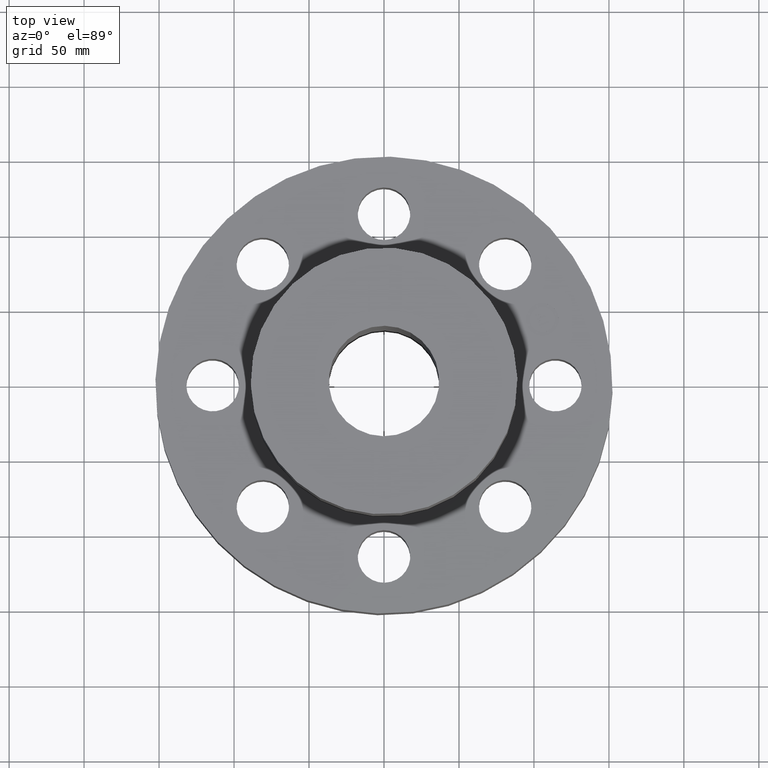
[diagram: clean part render]
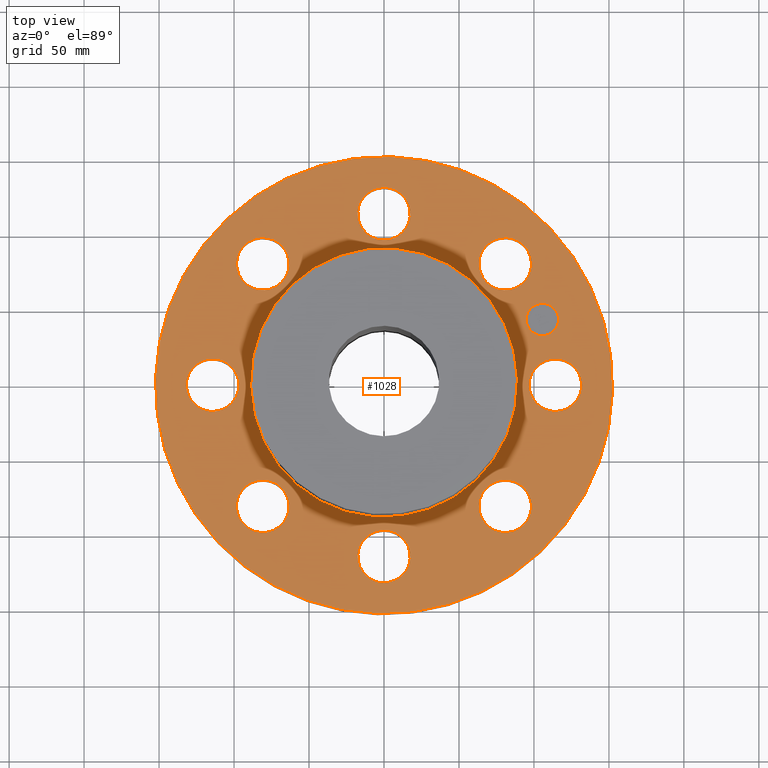
[diagram: same view with one face highlighted and labeled with its STEP entity id]
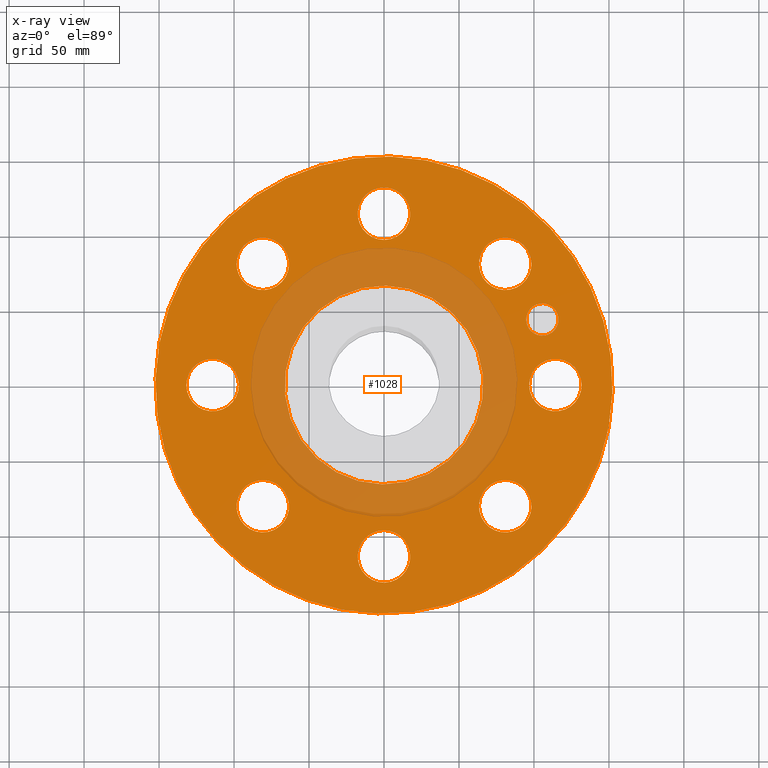
[diagram: x-ray of the same camera — body ghosted, the highlighted face saturated]
A machine part, top view. The second image highlights one B-rep face of the part: STEP entity #1028.
The next image is the same camera in x-ray: the body ghosted, the highlighted face saturated — about 22% of this face is hidden behind the body in this view.
In plain terms, the highlighted planar face has unit normal (0, 0, -1).
Its self-contained STEP definition (entity closure, byte-faithful):
#51=AXIS2_PLACEMENT_3D('Circle Axis2P3D',#49,#50,$) ;
#254=AXIS2_PLACEMENT_3D('Circle Axis2P3D',#252,#253,$) ;
#278=AXIS2_PLACEMENT_3D('Circle Axis2P3D',#276,#277,$) ;
#297=AXIS2_PLACEMENT_3D('Circle Axis2P3D',#295,#296,$) ;
#314=AXIS2_PLACEMENT_3D('Circle Axis2P3D',#312,#313,$) ;
#349=AXIS2_PLACEMENT_3D('Circle Axis2P3D',#347,#348,$) ;
#678=AXIS2_PLACEMENT_3D('Circle Axis2P3D',#676,#677,$) ;
#697=AXIS2_PLACEMENT_3D('Circle Axis2P3D',#695,#696,$) ;
#721=AXIS2_PLACEMENT_3D('Circle Axis2P3D',#719,#720,$) ;
#740=AXIS2_PLACEMENT_3D('Circle Axis2P3D',#738,#739,$) ;
#764=AXIS2_PLACEMENT_3D('Circle Axis2P3D',#762,#763,$) ;
#783=AXIS2_PLACEMENT_3D('Circle Axis2P3D',#781,#782,$) ;
#807=AXIS2_PLACEMENT_3D('Circle Axis2P3D',#805,#806,$) ;
#826=AXIS2_PLACEMENT_3D('Circle Axis2P3D',#824,#825,$) ;
#850=AXIS2_PLACEMENT_3D('Circle Axis2P3D',#848,#849,$) ;
#869=AXIS2_PLACEMENT_3D('Circle Axis2P3D',#867,#868,$) ;
#893=AXIS2_PLACEMENT_3D('Circle Axis2P3D',#891,#892,$) ;
#912=AXIS2_PLACEMENT_3D('Circle Axis2P3D',#910,#911,$) ;
#936=AXIS2_PLACEMENT_3D('Circle Axis2P3D',#934,#935,$) ;
#955=AXIS2_PLACEMENT_3D('Circle Axis2P3D',#953,#954,$) ;
#968=AXIS2_PLACEMENT_3D('Plane Axis2P3D',#965,#966,#967) ;
#1012=AXIS2_PLACEMENT_3D('Circle Axis2P3D',#1010,#1011,$) ;
#1021=AXIS2_PLACEMENT_3D('Circle Axis2P3D',#1019,#1020,$) ;
#44=CARTESIAN_POINT('Vertex',(3.89446803231,-0.330803621638,2.62000000001)) ;
#49=CARTESIAN_POINT('Axis2P3D Location',(4.50000000002,0.,2.62000000001)) ;
#53=CARTESIAN_POINT('Vertex',(5.10553196772,0.330803621638,2.62000000001)) ;
#252=CARTESIAN_POINT('Axis2P3D Location',(4.50000000002,0.,2.62000000001)) ;
#273=CARTESIAN_POINT('Vertex',(-2.87655323164,-5.26549537136,2.62000000001)) ;
#276=CARTESIAN_POINT('Axis2P3D Location',(0.,0.,2.62000000001)) ;
#280=CARTESIAN_POINT('Vertex',(2.87655323164,5.26549537136,2.62000000001)) ;
#295=CARTESIAN_POINT('Axis2P3D Location',(0.,0.,2.62000000001)) ;
#312=CARTESIAN_POINT('Axis2P3D Location',(0.,0.,2.62000000001)) ;
#316=CARTESIAN_POINT('Vertex',(1.25130065576,2.29049048654,2.62000000001)) ;
#318=CARTESIAN_POINT('Vertex',(-1.25130065576,-2.29049048654,2.62000000001)) ;
#347=CARTESIAN_POINT('Axis2P3D Location',(0.,0.,2.62000000001)) ;
#673=CARTESIAN_POINT('Vertex',(2.51989127066,-2.98771823886,2.62000000001)) ;
#676=CARTESIAN_POINT('Axis2P3D Location',(3.18198051535,-3.18198051535,2.62000000001)) ;
#680=CARTESIAN_POINT('Vertex',(3.84406976004,-3.37624279184,2.62000000001)) ;
#695=CARTESIAN_POINT('Axis2P3D Location',(3.18198051535,-3.18198051535,2.62000000001)) ;
#716=CARTESIAN_POINT('Vertex',(-0.330803621638,-3.89446803231,2.62000000001)) ;
#719=CARTESIAN_POINT('Axis2P3D Location',(2.75545529809E-016,-4.50000000002,2.62000000001)) ;
#723=CARTESIAN_POINT('Vertex',(0.330803621638,-5.10553196772,2.62000000001)) ;
#738=CARTESIAN_POINT('Axis2P3D Location',(2.75545529809E-016,-4.50000000002,2.62000000001)) ;
#759=CARTESIAN_POINT('Vertex',(-2.98771823886,-2.51989127066,2.62000000001)) ;
#762=CARTESIAN_POINT('Axis2P3D Location',(-3.18198051535,-3.18198051535,2.62000000001)) ;
#766=CARTESIAN_POINT('Vertex',(-3.37624279184,-3.84406976004,2.62000000001)) ;
#781=CARTESIAN_POINT('Axis2P3D Location',(-3.18198051535,-3.18198051535,2.62000000001)) ;
#802=CARTESIAN_POINT('Vertex',(-3.89446803231,0.330803621638,2.62000000001)) ;
#805=CARTESIAN_POINT('Axis2P3D Location',(-4.50000000002,-5.51091059619E-016,2.62000000001)) ;
#809=CARTESIAN_POINT('Vertex',(-5.10553196772,-0.330803621638,2.62000000001)) ;
#824=CARTESIAN_POINT('Axis2P3D Location',(-4.50000000002,-5.51091059619E-016,2.62000000001)) ;
#845=CARTESIAN_POINT('Vertex',(-2.51989127066,2.98771823886,2.62000000001)) ;
#848=CARTESIAN_POINT('Axis2P3D Location',(-3.18198051535,3.18198051535,2.62000000001)) ;
#852=CARTESIAN_POINT('Vertex',(-3.84406976004,3.37624279184,2.62000000001)) ;
#867=CARTESIAN_POINT('Axis2P3D Location',(-3.18198051535,3.18198051535,2.62000000001)) ;
#888=CARTESIAN_POINT('Vertex',(0.330803621638,3.89446803231,2.62000000001)) ;
#891=CARTESIAN_POINT('Axis2P3D Location',(-8.26636589428E-016,4.50000000002,2.62000000001)) ;
#895=CARTESIAN_POINT('Vertex',(-0.330803621638,5.10553196772,2.62000000001)) ;
#910=CARTESIAN_POINT('Axis2P3D Location',(-8.26636589428E-016,4.50000000002,2.62000000001)) ;
#931=CARTESIAN_POINT('Vertex',(2.98771823886,2.51989127066,2.62000000001)) ;
#934=CARTESIAN_POINT('Axis2P3D Location',(3.18198051535,3.18198051535,2.62000000001)) ;
#938=CARTESIAN_POINT('Vertex',(3.37624279184,3.84406976004,2.62000000001)) ;
#953=CARTESIAN_POINT('Axis2P3D Location',(3.18198051535,3.18198051535,2.62000000001)) ;
#965=CARTESIAN_POINT('Axis2P3D Location',(0.,6.00000000002,2.62000000001)) ;
#1010=CARTESIAN_POINT('Axis2P3D Location',(4.15745789632,1.72207544565,2.62000000001)) ;
#1014=CARTESIAN_POINT('Vertex',(4.32009835345,1.32942664826,2.62000000001)) ;
#1016=CARTESIAN_POINT('Vertex',(3.99481743919,2.11472424304,2.62000000001)) ;
#1019=CARTESIAN_POINT('Axis2P3D Location',(4.15745789632,1.72207544565,2.62000000001)) ;
#50=DIRECTION('Axis2P3D Direction',(0.,-0.,0.0393700787402)) ;
#253=DIRECTION('Axis2P3D Direction',(0.,-0.,0.0393700787402)) ;
#277=DIRECTION('Axis2P3D Direction',(0.,0.,-0.0393700787402)) ;
#296=DIRECTION('Axis2P3D Direction',(0.,0.,-0.0393700787402)) ;
#313=DIRECTION('Axis2P3D Direction',(0.,0.,-0.0393700787402)) ;
#348=DIRECTION('Axis2P3D Direction',(0.,0.,-0.0393700787402)) ;
#677=DIRECTION('Axis2P3D Direction',(-0.,0.,0.0393700787402)) ;
#696=DIRECTION('Axis2P3D Direction',(-0.,0.,0.0393700787402)) ;
#720=DIRECTION('Axis2P3D Direction',(-0.,0.,0.0393700787402)) ;
#739=DIRECTION('Axis2P3D Direction',(-0.,0.,0.0393700787402)) ;
#763=DIRECTION('Axis2P3D Direction',(0.,0.,0.0393700787402)) ;
#782=DIRECTION('Axis2P3D Direction',(0.,0.,0.0393700787402)) ;
#806=DIRECTION('Axis2P3D Direction',(0.,0.,0.0393700787402)) ;
#825=DIRECTION('Axis2P3D Direction',(0.,0.,0.0393700787402)) ;
#849=DIRECTION('Axis2P3D Direction',(0.,0.,0.0393700787402)) ;
#868=DIRECTION('Axis2P3D Direction',(0.,0.,0.0393700787402)) ;
#892=DIRECTION('Axis2P3D Direction',(0.,0.,0.0393700787402)) ;
#911=DIRECTION('Axis2P3D Direction',(0.,0.,0.0393700787402)) ;
#935=DIRECTION('Axis2P3D Direction',(0.,-0.,0.0393700787402)) ;
#954=DIRECTION('Axis2P3D Direction',(0.,-0.,0.0393700787402)) ;
#966=DIRECTION('Axis2P3D Direction',(0.,0.,-0.0393700787402)) ;
#967=DIRECTION('Axis2P3D XDirection',(0.0393700787402,0.,0.)) ;
#1011=DIRECTION('Axis2P3D Direction',(0.,0.,-0.0393700787402)) ;
#1020=DIRECTION('Axis2P3D Direction',(0.,0.,-0.0393700787402)) ;
#971=ORIENTED_EDGE('',*,*,#299,.F.) ;
#972=ORIENTED_EDGE('',*,*,#282,.F.) ;
#975=ORIENTED_EDGE('',*,*,#55,.T.) ;
#976=ORIENTED_EDGE('',*,*,#256,.T.) ;
#979=ORIENTED_EDGE('',*,*,#351,.T.) ;
#980=ORIENTED_EDGE('',*,*,#320,.T.) ;
#983=ORIENTED_EDGE('',*,*,#699,.T.) ;
#984=ORIENTED_EDGE('',*,*,#682,.T.) ;
#987=ORIENTED_EDGE('',*,*,#742,.T.) ;
#988=ORIENTED_EDGE('',*,*,#725,.T.) ;
#991=ORIENTED_EDGE('',*,*,#785,.T.) ;
#992=ORIENTED_EDGE('',*,*,#768,.T.) ;
#995=ORIENTED_EDGE('',*,*,#828,.T.) ;
#996=ORIENTED_EDGE('',*,*,#811,.T.) ;
#999=ORIENTED_EDGE('',*,*,#871,.T.) ;
#1000=ORIENTED_EDGE('',*,*,#854,.T.) ;
#1003=ORIENTED_EDGE('',*,*,#914,.T.) ;
#1004=ORIENTED_EDGE('',*,*,#897,.T.) ;
#1007=ORIENTED_EDGE('',*,*,#957,.T.) ;
#1008=ORIENTED_EDGE('',*,*,#940,.T.) ;
#1025=ORIENTED_EDGE('',*,*,#1018,.F.) ;
#1026=ORIENTED_EDGE('',*,*,#1023,.F.) ;
#977=FACE_BOUND('',#974,.T.) ;
#981=FACE_BOUND('',#978,.T.) ;
#985=FACE_BOUND('',#982,.T.) ;
#989=FACE_BOUND('',#986,.T.) ;
#993=FACE_BOUND('',#990,.T.) ;
#997=FACE_BOUND('',#994,.T.) ;
#1001=FACE_BOUND('',#998,.T.) ;
#1005=FACE_BOUND('',#1002,.T.) ;
#1009=FACE_BOUND('',#1006,.T.) ;
#1027=FACE_BOUND('',#1024,.T.) ;
#1028=ADVANCED_FACE('PartBody',(#973,#977,#981,#985,#989,#993,#997,#1001,#1005,#1009,#1027),#969,.F.) ;
#52=CIRCLE('generated circle',#51,0.690000000003) ;
#255=CIRCLE('generated circle',#254,0.690000000003) ;
#279=CIRCLE('generated circle',#278,6.00000000002) ;
#298=CIRCLE('generated circle',#297,6.00000000002) ;
#315=CIRCLE('generated circle',#314,2.61000000001) ;
#350=CIRCLE('generated circle',#349,2.61000000001) ;
#679=CIRCLE('generated circle',#678,0.690000000003) ;
#698=CIRCLE('generated circle',#697,0.690000000003) ;
#722=CIRCLE('generated circle',#721,0.690000000003) ;
#741=CIRCLE('generated circle',#740,0.690000000003) ;
#765=CIRCLE('generated circle',#764,0.690000000003) ;
#784=CIRCLE('generated circle',#783,0.690000000003) ;
#808=CIRCLE('generated circle',#807,0.690000000003) ;
#827=CIRCLE('generated circle',#826,0.690000000003) ;
#851=CIRCLE('generated circle',#850,0.690000000003) ;
#870=CIRCLE('generated circle',#869,0.690000000003) ;
#894=CIRCLE('generated circle',#893,0.690000000003) ;
#913=CIRCLE('generated circle',#912,0.690000000003) ;
#937=CIRCLE('generated circle',#936,0.690000000003) ;
#956=CIRCLE('generated circle',#955,0.690000000003) ;
#1013=CIRCLE('generated circle',#1012,0.424999995752) ;
#1022=CIRCLE('generated circle',#1021,0.424999995752) ;
#55=EDGE_CURVE('',#54,#45,#52,.F.) ;
#256=EDGE_CURVE('',#45,#54,#255,.F.) ;
#282=EDGE_CURVE('',#274,#281,#279,.T.) ;
#299=EDGE_CURVE('',#281,#274,#298,.T.) ;
#320=EDGE_CURVE('',#317,#319,#315,.T.) ;
#351=EDGE_CURVE('',#319,#317,#350,.T.) ;
#682=EDGE_CURVE('',#681,#674,#679,.F.) ;
#699=EDGE_CURVE('',#674,#681,#698,.F.) ;
#725=EDGE_CURVE('',#724,#717,#722,.F.) ;
#742=EDGE_CURVE('',#717,#724,#741,.F.) ;
#768=EDGE_CURVE('',#767,#760,#765,.F.) ;
#785=EDGE_CURVE('',#760,#767,#784,.F.) ;
#811=EDGE_CURVE('',#810,#803,#808,.F.) ;
#828=EDGE_CURVE('',#803,#810,#827,.F.) ;
#854=EDGE_CURVE('',#853,#846,#851,.F.) ;
#871=EDGE_CURVE('',#846,#853,#870,.F.) ;
#897=EDGE_CURVE('',#896,#889,#894,.F.) ;
#914=EDGE_CURVE('',#889,#896,#913,.F.) ;
#940=EDGE_CURVE('',#939,#932,#937,.F.) ;
#957=EDGE_CURVE('',#932,#939,#956,.F.) ;
#1018=EDGE_CURVE('',#1015,#1017,#1013,.F.) ;
#1023=EDGE_CURVE('',#1017,#1015,#1022,.F.) ;
#970=EDGE_LOOP('',(#971,#972)) ;
#974=EDGE_LOOP('',(#975,#976)) ;
#978=EDGE_LOOP('',(#979,#980)) ;
#982=EDGE_LOOP('',(#983,#984)) ;
#986=EDGE_LOOP('',(#987,#988)) ;
#990=EDGE_LOOP('',(#991,#992)) ;
#994=EDGE_LOOP('',(#995,#996)) ;
#998=EDGE_LOOP('',(#999,#1000)) ;
#1002=EDGE_LOOP('',(#1003,#1004)) ;
#1006=EDGE_LOOP('',(#1007,#1008)) ;
#1024=EDGE_LOOP('',(#1025,#1026)) ;
#973=FACE_OUTER_BOUND('',#970,.T.) ;
#969=PLANE('',#968) ;
#45=VERTEX_POINT('',#44) ;
#54=VERTEX_POINT('',#53) ;
#274=VERTEX_POINT('',#273) ;
#281=VERTEX_POINT('',#280) ;
#317=VERTEX_POINT('',#316) ;
#319=VERTEX_POINT('',#318) ;
#674=VERTEX_POINT('',#673) ;
#681=VERTEX_POINT('',#680) ;
#717=VERTEX_POINT('',#716) ;
#724=VERTEX_POINT('',#723) ;
#760=VERTEX_POINT('',#759) ;
#767=VERTEX_POINT('',#766) ;
#803=VERTEX_POINT('',#802) ;
#810=VERTEX_POINT('',#809) ;
#846=VERTEX_POINT('',#845) ;
#853=VERTEX_POINT('',#852) ;
#889=VERTEX_POINT('',#888) ;
#896=VERTEX_POINT('',#895) ;
#932=VERTEX_POINT('',#931) ;
#939=VERTEX_POINT('',#938) ;
#1015=VERTEX_POINT('',#1014) ;
#1017=VERTEX_POINT('',#1016) ;